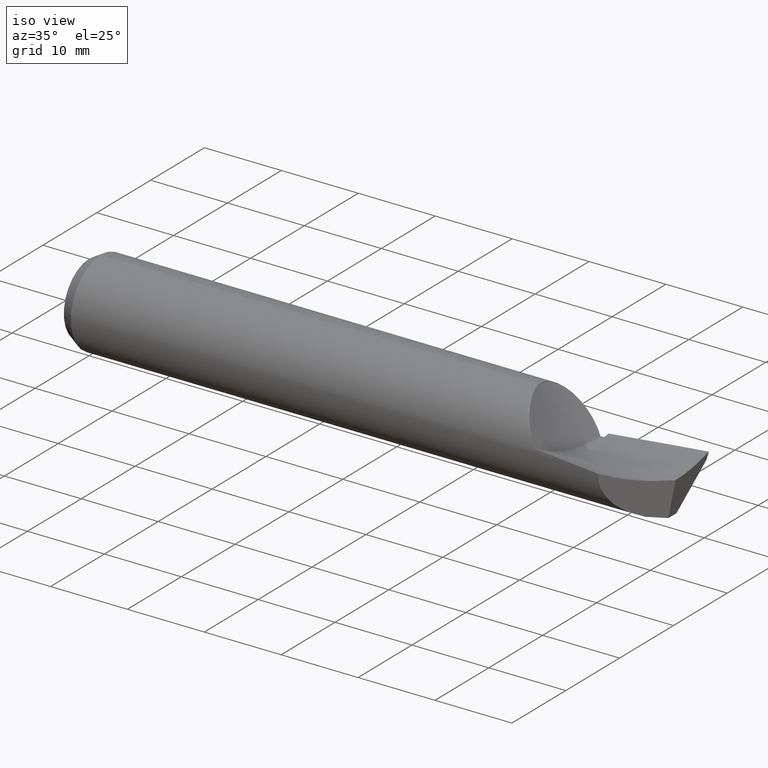
[diagram: clean part render]
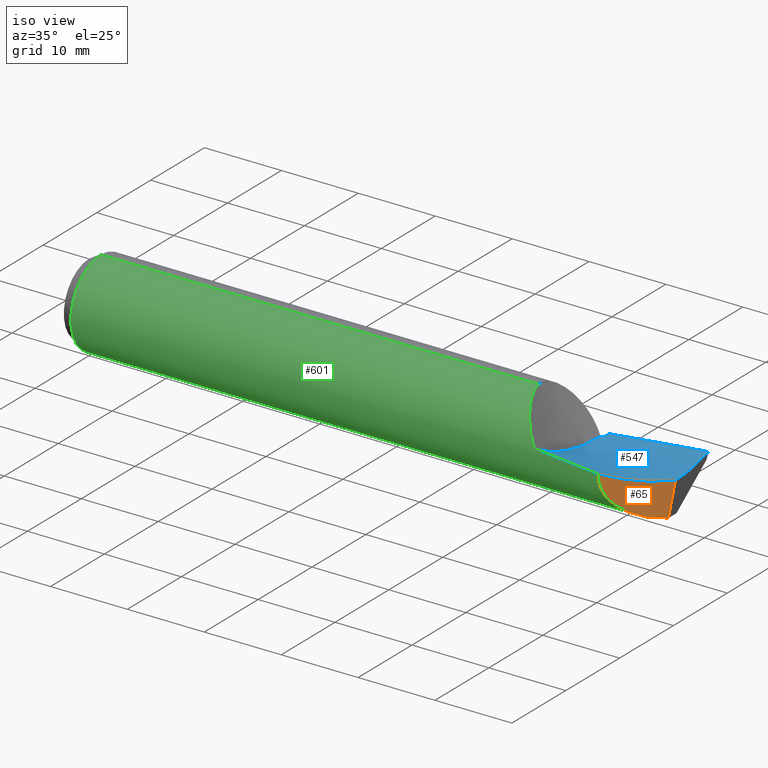
[diagram: same view with three faces highlighted in distinct colors, each labeled with its STEP entity id]
A machine part, iso view with three faces highlighted in distinct colors.
Their STEP definitions:

[orange] entity #65 — the highlighted planar face has unit normal (-0.7071, 0.7071, 0).
#14 = CARTESIAN_POINT ( 'NONE',  ( 2.952458880642425676, -0.02590525459746200604, -0.04690927801593595264 ) ) ;
#25 = CARTESIAN_POINT ( 'NONE',  ( 2.759944547215722022, -0.2184195880241632803, 0.01003524127037984555 ) ) ;
#46 = VERTEX_POINT ( 'NONE', #276 ) ;
#65 = ADVANCED_FACE ( 'NONE', ( #384 ), #387, .F. ) ;
#67 = AXIS2_PLACEMENT_3D ( 'NONE', #154, #102, #548 ) ;
#77 = ORIENTED_EDGE ( 'NONE', *, *, #672, .T. ) ;
#102 = DIRECTION ( 'NONE',  ( -0.7071067811865457964, 0.7071067811865492381, 0.000000000000000000 ) ) ;
#129 = EDGE_CURVE ( 'NONE', #46, #482, #393, .T. ) ;
#154 = CARTESIAN_POINT ( 'NONE',  ( 2.745857864376267887, -0.2325062708636176367, -0.2500000000000000555 ) ) ;
#157 = EDGE_CURVE ( 'NONE', #185, #482, #371, .T. ) ;
#185 = VERTEX_POINT ( 'NONE', #435 ) ;
#230 = CARTESIAN_POINT ( 'NONE',  ( 2.992409909881779573, 0.01404577464189131833, -0.04600755233719699966 ) ) ;
#231 = ORIENTED_EDGE ( 'NONE', *, *, #157, .F. ) ;
#236 = CARTESIAN_POINT ( 'NONE',  ( 2.913117357248658390, -0.06524677799122817479, -0.04263809646310495055 ) ) ;
#253 = VECTOR ( 'NONE', #540, 39.37007874015748854 ) ;
#263 = CARTESIAN_POINT ( 'NONE',  ( 2.759944547215722022, -0.2184195880241632803, 0.01003524127037984555 ) ) ;
#276 = CARTESIAN_POINT ( 'NONE',  ( 2.992409909881779573, 0.01404577464189131833, -0.04600755233719699966 ) ) ;
#360 = ORIENTED_EDGE ( 'NONE', *, *, #129, .T. ) ;
#364 = EDGE_LOOP ( 'NONE', ( #231, #77, #360 ) ) ;
#371 =( BOUNDED_CURVE ( )  B_SPLINE_CURVE ( 3, ( #581, #376, #576, #25 ),
 .UNSPECIFIED., .F., .T. ) 
 B_SPLINE_CURVE_WITH_KNOTS ( ( 4, 4 ),
 ( 4.745893012356792617, 6.329097805607812433 ),
 .UNSPECIFIED. ) 
 CURVE ( )  GEOMETRIC_REPRESENTATION_ITEM ( )  RATIONAL_B_SPLINE_CURVE ( ( 1.000000000000000000, 0.8018040965532753361, 0.8018040965532753361, 1.000000000000000000 ) ) 
 REPRESENTATION_ITEM ( '' )  );
#376 = CARTESIAN_POINT ( 'NONE',  ( 2.841766508389281576, -0.1365976268506046698, -0.2141944924827753893 ) ) ;
#384 = FACE_OUTER_BOUND ( 'NONE', #364, .T. ) ;
#387 = PLANE ( 'NONE',  #67 ) ;
#393 = B_SPLINE_CURVE_WITH_KNOTS ( 'NONE', 3,
 ( #230, #14, #236, #410, #414, #263 ),
 .UNSPECIFIED., .F., .F.,
 ( 4, 2, 4 ),
 ( 0.0002679580712601496348, 0.004503356390161120451, 0.008738754709062091647 ),
 .UNSPECIFIED. ) ;
#394 = CARTESIAN_POINT ( 'NONE',  ( 2.759944547215722022, -0.2184195880241632803, 0.01003524127037984555 ) ) ;
#410 = CARTESIAN_POINT ( 'NONE',  ( 2.835613050715348749, -0.1427510845245388571, -0.02409170463590122255 ) ) ;
#414 = CARTESIAN_POINT ( 'NONE',  ( 2.797449222074813946, -0.1809149131650716336, -0.009825367581797713953 ) ) ;
#435 = CARTESIAN_POINT ( 'NONE',  ( 2.971039849105131747, -0.007324286134754693679, -0.2185272919628489519 ) ) ;
#482 = VERTEX_POINT ( 'NONE', #394 ) ;
#535 = CARTESIAN_POINT ( 'NONE',  ( 2.960552829017626397, -0.01781130622226041391, -0.3031886316655612035 ) ) ;
#540 = DIRECTION ( 'NONE',  ( 0.1220122463319276429, 0.1220122463319270323, 0.9850005195379716305 ) ) ;
#548 = DIRECTION ( 'NONE',  ( -0.7071067811865492381, -0.7071067811865457964, 0.000000000000000000 ) ) ;
#576 = CARTESIAN_POINT ( 'NONE',  ( 2.754008038543239945, -0.2243560966966458292, -0.1191743854450949269 ) ) ;
#581 = CARTESIAN_POINT ( 'NONE',  ( 2.971039849105131747, -0.007324286134754693679, -0.2185272919628489519 ) ) ;
#651 = LINE ( 'NONE', #535, #253 ) ;
#672 = EDGE_CURVE ( 'NONE', #185, #46, #651, .T. ) ;

[blue] entity #547 — the highlighted face is a freeform B-spline surface patch.
#4 = CARTESIAN_POINT ( 'NONE',  ( 2.453529265273477922, 0.02632038727176034057, -0.05321014791944891908 ) ) ;
#7 = CARTESIAN_POINT ( 'NONE',  ( 2.926130615619848552, 0.2477060359061865613, -0.008186851868489259873 ) ) ;
#10 = CARTESIAN_POINT ( 'NONE',  ( 3.000000000000000444, 0.1068138953506696243, -0.07014347580852546560 ) ) ;
#13 = CARTESIAN_POINT ( 'NONE',  ( 3.000000000000000444, -0.1068138953506696520, -0.07014347580852543784 ) ) ;
#14 = CARTESIAN_POINT ( 'NONE',  ( 2.952458880642425676, -0.02590525459746200604, -0.04690927801593595264 ) ) ;
#17 = CARTESIAN_POINT ( 'NONE',  ( 2.809895244831540850, 0.2472116736001756243, -0.01975824981623042556 ) ) ;
#46 = VERTEX_POINT ( 'NONE', #276 ) ;
#72 = CARTESIAN_POINT ( 'NONE',  ( 2.464212849416284268, 0.1377136875928078319, -0.06237143978746857720 ) ) ;
#74 = CARTESIAN_POINT ( 'NONE',  ( 2.675925925925927373, -0.1160484591303231200, -0.05608115970857106142 ) ) ;
#80 = CARTESIAN_POINT ( 'NONE',  ( 2.992943527074801047, 0.05368886949584446289, -0.04447926573626161117 ) ) ;
#97 = CARTESIAN_POINT ( 'NONE',  ( 2.489999999999999769, 0.2114691027157989678, -0.05557554405431827660 ) ) ;
#105 = EDGE_CURVE ( 'NONE', #404, #729, #328, .T. ) ;
#108 = CARTESIAN_POINT ( 'NONE',  ( 2.428289023255804313, -0.2151305318689206991, 0.03907271116515032006 ) ) ;
#123 = CARTESIAN_POINT ( 'NONE',  ( 2.596629930743082237, 0.2448327961100067174, -0.04093195773288563905 ) ) ;
#124 = EDGE_CURVE ( 'NONE', #524, #172, #288, .T. ) ;
#128 = CARTESIAN_POINT ( 'NONE',  ( 2.467775382269693285, 0.1747646242851797760, -0.06124491988081878086 ) ) ;
#129 = EDGE_CURVE ( 'NONE', #46, #482, #393, .T. ) ;
#130 = VERTEX_POINT ( 'NONE', #645 ) ;
#137 = CARTESIAN_POINT ( 'NONE',  ( 1.703703703703706607, -0.1275752847551152036, -0.007339084284587429202 ) ) ;
#149 = CARTESIAN_POINT ( 'NONE',  ( 2.992624683810753083, 0.03385053414722247189, -0.04566598811201510316 ) ) ;
#158 = CARTESIAN_POINT ( 'NONE',  ( 2.759944547215722022, -0.2184195880241632803, 0.01003524127037984555 ) ) ;
#170 = CARTESIAN_POINT ( 'NONE',  ( 2.432181049313780097, -0.1841263147728423033, 0.01977626706365440482 ) ) ;
#172 = VERTEX_POINT ( 'NONE', #636 ) ;
#176 = CARTESIAN_POINT ( 'NONE',  ( 1.703703703703706607, 0.05743180894658971719, -0.1141529796352570847 ) ) ;
#187 = CARTESIAN_POINT ( 'NONE',  ( 2.027777777777780344, 0.2876624987053781890, -0.09582829018325357551 ) ) ;
#188 = CARTESIAN_POINT ( 'NONE',  ( 2.994331206119607902, 0.1133106296732912799, -0.03741539065945204828 ) ) ;
#191 = B_SPLINE_CURVE_WITH_KNOTS ( 'NONE', 3,
 ( #358, #322, #305, #188, #327, #80, #149, #731 ),
 .UNSPECIFIED., .F., .F.,
 ( 4, 2, 2, 4 ),
 ( 7.173462370684666684E-18, 0.003035248955598827438, 0.004552873433398237253, 0.006070497911197647069 ),
 .UNSPECIFIED. ) ;
#198 = EDGE_CURVE ( 'NONE', #404, #46, #191, .T. ) ;
#203 = EDGE_CURVE ( 'NONE', #130, #524, #701, .T. ) ;
#230 = CARTESIAN_POINT ( 'NONE',  ( 2.992409909881779573, 0.01404577464189131833, -0.04600755233719699966 ) ) ;
#232 = CARTESIAN_POINT ( 'NONE',  ( 2.675925925925927373, -0.2970371766865925189, 0.06084151565276457729 ) ) ;
#235 = CARTESIAN_POINT ( 'NONE',  ( 1.703703703703706829, 0.2703604744503558810, -0.1314219218935561984 ) ) ;
#236 = CARTESIAN_POINT ( 'NONE',  ( 2.913117357248658390, -0.06524677799122817479, -0.04263809646310495055 ) ) ;
#246 = CARTESIAN_POINT ( 'NONE',  ( 2.027777777777780344, -0.1266090759790448605, -0.02413468915302155807 ) ) ;
#263 = CARTESIAN_POINT ( 'NONE',  ( 2.759944547215722022, -0.2184195880241632803, 0.01003524127037984555 ) ) ;
#276 = CARTESIAN_POINT ( 'NONE',  ( 2.992409909881779573, 0.01404577464189131833, -0.04600755233719699966 ) ) ;
#287 = ORIENTED_EDGE ( 'NONE', *, *, #105, .T. ) ;
#288 = B_SPLINE_CURVE_WITH_KNOTS ( 'NONE', 3,
 ( #628, #128, #72, #557, #4, #454, #622, #679, #170, #289 ),
 .UNSPECIFIED., .F., .F.,
 ( 4, 2, 2, 2, 4 ),
 ( 0.000000000000000000, 0.2500000000000001665, 0.5000000000000002220, 0.7500000000000001110, 1.000000000000000000 ),
 .UNSPECIFIED. ) ;
#289 = CARTESIAN_POINT ( 'NONE',  ( 2.428289023255804313, -0.2151305318689206991, 0.03907271116515032006 ) ) ;
#295 = EDGE_CURVE ( 'NONE', #561, #130, #413, .T. ) ;
#300 = CARTESIAN_POINT ( 'NONE',  ( 3.000000000000000444, -0.2998500000000000054, 0.02136551425118393688 ) ) ;
#304 = CARTESIAN_POINT ( 'NONE',  ( 1.703703703703706829, -0.2489949601991719441, 0.1684280781064437238 ) ) ;
#305 = CARTESIAN_POINT ( 'NONE',  ( 2.996235550854351004, 0.1720403349151023165, -0.02608037137611564360 ) ) ;
#322 = CARTESIAN_POINT ( 'NONE',  ( 2.997909695912627903, 0.2103325509907039703, -0.01516757485499540224 ) ) ;
#327 = CARTESIAN_POINT ( 'NONE',  ( 2.993796581184938521, 0.09343502413978028998, -0.04035679793326746312 ) ) ;
#328 = B_SPLINE_CURVE_WITH_KNOTS ( 'NONE', 3,
 ( #617, #523, #633, #7, #462, #399, #17 ),
 .UNSPECIFIED., .F., .F.,
 ( 4, 3, 4 ),
 ( 6.776263578034401960E-21, 0.001885633772096463210, 0.004852637163710026361 ),
 .UNSPECIFIED. ) ;
#331 = B_SPLINE_CURVE_WITH_KNOTS ( 'NONE', 3,
 ( #461, #575, #123, #357 ),
 .UNSPECIFIED., .F., .F.,
 ( 4, 4 ),
 ( 9.477631622391582071E-13, 0.008165861144580687653 ),
 .UNSPECIFIED. ) ;
#335 = CARTESIAN_POINT ( 'NONE',  ( 2.593749806622903442, -0.2177474673098440949, 0.02466412019502529571 ) ) ;
#357 = CARTESIAN_POINT ( 'NONE',  ( 2.489999999999967351, 0.2426219749193215536, -0.05138085314958797112 ) ) ;
#358 = CARTESIAN_POINT ( 'NONE',  ( 3.000000000000000444, 0.2477392110322483021, -0.0008026259127264761661 ) ) ;
#361 = CARTESIAN_POINT ( 'NONE',  ( 2.489999999999967351, 0.2426219749193215536, -0.05138085314958797112 ) ) ;
#365 = CARTESIAN_POINT ( 'NONE',  ( 2.351851851851853414, 0.08501983269681530342, -0.09539886522747811903 ) ) ;
#378 = ORIENTED_EDGE ( 'NONE', *, *, #443, .T. ) ;
#392 =( BOUNDED_SURFACE ( )  B_SPLINE_SURFACE ( 3, 2, ( 
 ( #300, #232, #475, #525, #304 ),
 ( #13, #74, #521, #246, #137 ),
 ( #10, #708, #365, #472, #176 ),
 ( #583, #567, #635, #187, #235 ) ),
 .UNSPECIFIED., .F., .F., .T. ) 
 B_SPLINE_SURFACE_WITH_KNOTS ( ( 4, 4 ),
 ( 3, 2, 3 ),
 ( 0.000000000000000000, 1.000000000000000000 ),
 ( 0.000000000000000000, 0.5000000000000000000, 1.000000000000000000 ),
 .UNSPECIFIED. ) 
 GEOMETRIC_REPRESENTATION_ITEM ( )  RATIONAL_B_SPLINE_SURFACE ( (
 ( 1.000000000000000000, 0.9914448613738103822, 1.000000000000000000, 0.9914448613738103822, 1.000000000000000000),
 ( 0.9357396776127722138, 0.9277342949527689342, 0.9357396776127722138, 0.9277342949527689342, 0.9357396776127722138),
 ( 0.9357396776127722138, 0.9277342949527689342, 0.9357396776127722138, 0.9277342949527689342, 0.9357396776127722138),
 ( 1.000000000000000000, 0.9914448613738103822, 1.000000000000000000, 0.9914448613738103822, 1.000000000000000000) ) ) 
 REPRESENTATION_ITEM ( '' )  SURFACE ( )  );
#393 = B_SPLINE_CURVE_WITH_KNOTS ( 'NONE', 3,
 ( #230, #14, #236, #410, #414, #263 ),
 .UNSPECIFIED., .F., .F.,
 ( 4, 2, 4 ),
 ( 0.0002679580712601496348, 0.004503356390161120451, 0.008738754709062091647 ),
 .UNSPECIFIED. ) ;
#394 = CARTESIAN_POINT ( 'NONE',  ( 2.759944547215722022, -0.2184195880241632803, 0.01003524127037984555 ) ) ;
#399 = CARTESIAN_POINT ( 'NONE',  ( 2.848640842118977279, 0.2474659832089975697, -0.01591075100367276771 ) ) ;
#404 = VERTEX_POINT ( 'NONE', #444 ) ;
#410 = CARTESIAN_POINT ( 'NONE',  ( 2.835613050715348749, -0.1427510845245388571, -0.02409170463590122255 ) ) ;
#413 =( BOUNDED_CURVE ( )  B_SPLINE_CURVE ( 3, ( #740, #515, #510, #457 ),
 .UNSPECIFIED., .F., .F. ) 
 B_SPLINE_CURVE_WITH_KNOTS ( ( 4, 4 ),
 ( 0.0002617011591299813617, 0.001057620901885632150 ),
 .UNSPECIFIED. ) 
 CURVE ( )  GEOMETRIC_REPRESENTATION_ITEM ( )  RATIONAL_B_SPLINE_CURVE ( ( 0.9808774511521618500, 0.9781997135498966545, 0.9756910240518260613, 0.9733513826579500705 ) ) 
 REPRESENTATION_ITEM ( '' )  );
#414 = CARTESIAN_POINT ( 'NONE',  ( 2.797449222074813946, -0.1809149131650716336, -0.009825367581797713953 ) ) ;
#443 = EDGE_CURVE ( 'NONE', #172, #482, #495, .T. ) ;
#444 = CARTESIAN_POINT ( 'NONE',  ( 3.000000000000000444, 0.2477392110322483021, -0.0008026259127264761661 ) ) ;
#454 = CARTESIAN_POINT ( 'NONE',  ( 2.446410319841564096, -0.04662749994845854368, -0.03674176704074298000 ) ) ;
#457 = CARTESIAN_POINT ( 'NONE',  ( 2.489999999999999769, 0.2114691027157989678, -0.05557554405431827660 ) ) ;
#460 = EDGE_LOOP ( 'NONE', ( #509, #287, #570, #467, #637, #528, #378, #626 ) ) ;
#461 = CARTESIAN_POINT ( 'NONE',  ( 2.809895244831540850, 0.2472116736001756243, -0.01975824981623042556 ) ) ;
#462 = CARTESIAN_POINT ( 'NONE',  ( 2.887386176554748829, 0.2476311015767037604, -0.01205364072063274533 ) ) ;
#467 = ORIENTED_EDGE ( 'NONE', *, *, #295, .T. ) ;
#468 = FACE_OUTER_BOUND ( 'NONE', #460, .T. ) ;
#472 = CARTESIAN_POINT ( 'NONE',  ( 2.027777777777780344, 0.07246033382261446443, -0.1065919385464763891 ) ) ;
#475 = CARTESIAN_POINT ( 'NONE',  ( 2.351851851851853414, -0.2841030570161613977, 0.09824439268115654766 ) ) ;
#482 = VERTEX_POINT ( 'NONE', #394 ) ;
#495 =( BOUNDED_CURVE ( )  B_SPLINE_CURVE ( 2, ( #108, #335, #158 ),
 .UNSPECIFIED., .F., .F. ) 
 B_SPLINE_CURVE_WITH_KNOTS ( ( 3, 3 ),
 ( 0.5593075405032249536, 0.8145556036202796779 ),
 .UNSPECIFIED. ) 
 CURVE ( )  GEOMETRIC_REPRESENTATION_ITEM ( )  RATIONAL_B_SPLINE_CURVE ( ( 0.9744143277570936901, 0.9711624498025578367, 0.9722633163224428943 ) ) 
 REPRESENTATION_ITEM ( '' )  );
#509 = ORIENTED_EDGE ( 'NONE', *, *, #198, .F. ) ;
#510 = CARTESIAN_POINT ( 'NONE',  ( 2.490000000000000657, 0.2218972837053052594, -0.05440913279074890974 ) ) ;
#515 = CARTESIAN_POINT ( 'NONE',  ( 2.490000000000000657, 0.2322832564455103443, -0.05301006633052884887 ) ) ;
#521 = CARTESIAN_POINT ( 'NONE',  ( 2.351851851851853414, -0.1213287675546839833, -0.04010792443079629760 ) ) ;
#523 = CARTESIAN_POINT ( 'NONE',  ( 2.975377276411506955, 0.2477648454692879254, -0.003267969609746442915 ) ) ;
#524 = VERTEX_POINT ( 'NONE', #579 ) ;
#525 = CARTESIAN_POINT ( 'NONE',  ( 2.027777777777780344, -0.2711689373457302765, 0.1356472697095485735 ) ) ;
#528 = ORIENTED_EDGE ( 'NONE', *, *, #124, .T. ) ;
#547 = ADVANCED_FACE ( 'NONE', ( #468 ), #392, .T. ) ;
#557 = CARTESIAN_POINT ( 'NONE',  ( 2.457089790918025596, 0.06348854570549891663, -0.05835484118810310705 ) ) ;
#561 = VERTEX_POINT ( 'NONE', #361 ) ;
#567 = CARTESIAN_POINT ( 'NONE',  ( 2.675925925925927373, 0.3026628233134074919, -0.01811048715039669660 ) ) ;
#570 = ORIENTED_EDGE ( 'NONE', *, *, #573, .T. ) ;
#573 = EDGE_CURVE ( 'NONE', #729, #561, #331, .T. ) ;
#575 = CARTESIAN_POINT ( 'NONE',  ( 2.703263665431202778, 0.2463618655492745002, -0.03039089554664004336 ) ) ;
#579 = CARTESIAN_POINT ( 'NONE',  ( 2.471346566983472215, 0.2110442653468279639, -0.05716765312847496561 ) ) ;
#583 = CARTESIAN_POINT ( 'NONE',  ( 3.000000000000000444, 0.2998499999999999499, 0.02136551425118393688 ) ) ;
#617 = CARTESIAN_POINT ( 'NONE',  ( 3.000000000000000444, 0.2477392110322483021, -0.0008026259127264761661 ) ) ;
#622 = CARTESIAN_POINT ( 'NONE',  ( 2.442851900054497705, -0.08240101752907307009, -0.02541948207811111152 ) ) ;
#626 = ORIENTED_EDGE ( 'NONE', *, *, #129, .F. ) ;
#628 = CARTESIAN_POINT ( 'NONE',  ( 2.471346566983472215, 0.2110442653468279639, -0.05716765312847496561 ) ) ;
#633 = CARTESIAN_POINT ( 'NONE',  ( 2.950754092320284627, 0.2477536593525599129, -0.005729369259274572079 ) ) ;
#635 = CARTESIAN_POINT ( 'NONE',  ( 2.351851851851853414, 0.2951626610093928127, -0.05696938866682513258 ) ) ;
#636 = CARTESIAN_POINT ( 'NONE',  ( 2.428289023255804313, -0.2151305318689206991, 0.03907271116515032006 ) ) ;
#637 = ORIENTED_EDGE ( 'NONE', *, *, #203, .T. ) ;
#639 = CARTESIAN_POINT ( 'NONE',  ( 2.480670511054988481, 0.2112596837126563543, -0.05637239902461498031 ) ) ;
#645 = CARTESIAN_POINT ( 'NONE',  ( 2.489999999999999769, 0.2114691027157989678, -0.05557554405431827660 ) ) ;
#653 = CARTESIAN_POINT ( 'NONE',  ( 2.809895244831540850, 0.2472116736001756243, -0.01975824981623042556 ) ) ;
#664 = CARTESIAN_POINT ( 'NONE',  ( 2.471346566983472215, 0.2110442653468279639, -0.05716765312847496561 ) ) ;
#679 = CARTESIAN_POINT ( 'NONE',  ( 2.435737264790456713, -0.1511528165519579192, 0.002841545197440521840 ) ) ;
#701 =( BOUNDED_CURVE ( )  B_SPLINE_CURVE ( 2, ( #97, #639, #664 ),
 .UNSPECIFIED., .F., .T. ) 
 B_SPLINE_CURVE_WITH_KNOTS ( ( 3, 3 ),
 ( 0.3930158259847700841, 0.4074109194752288943 ),
 .UNSPECIFIED. ) 
 CURVE ( )  GEOMETRIC_REPRESENTATION_ITEM ( )  RATIONAL_B_SPLINE_CURVE ( ( 0.9733513826577548933, 0.9734889251378003872, 0.9736403117979953725 ) ) 
 REPRESENTATION_ITEM ( '' )  );
#708 = CARTESIAN_POINT ( 'NONE',  ( 2.675925925925927373, 0.09757933157101621180, -0.08420579190847984896 ) ) ;
#729 = VERTEX_POINT ( 'NONE', #653 ) ;
#731 = CARTESIAN_POINT ( 'NONE',  ( 2.992409909881779573, 0.01404577464189131833, -0.04600755233719699966 ) ) ;
#740 = CARTESIAN_POINT ( 'NONE',  ( 2.489999999999967351, 0.2426219749193215536, -0.05138085314958797112 ) ) ;

[green] entity #601 — the highlighted cylindrical surface (partial cylindrical patch) has radius 5.5537 mm, axis along (-1, -0, -0).
#9 = VERTEX_POINT ( 'NONE', #710 ) ;
#24 = EDGE_CURVE ( 'NONE', #172, #545, #693, .T. ) ;
#25 = CARTESIAN_POINT ( 'NONE',  ( 2.759944547215722022, -0.2184195880241632803, 0.01003524127037984555 ) ) ;
#29 = CARTESIAN_POINT ( 'NONE',  ( 2.333018530376162136, -0.09912489433539911632, 0.1953142997923079105 ) ) ;
#32 = CARTESIAN_POINT ( 'NONE',  ( 2.404165058258995735, -0.2022209992731614780, 0.08673448802873333363 ) ) ;
#36 = CARTESIAN_POINT ( 'NONE',  ( 2.323214188873262032, -0.07528118465658968639, 0.2052819717783619657 ) ) ;
#43 = EDGE_CURVE ( 'NONE', #9, #185, #615, .T. ) ;
#61 = DIRECTION ( 'NONE',  ( 1.000000000000000000, -0.000000000000000000, -0.000000000000000000 ) ) ;
#86 = EDGE_CURVE ( 'NONE', #280, #290, #319, .T. ) ;
#87 = EDGE_CURVE ( 'NONE', #545, #702, #222, .T. ) ;
#89 = CARTESIAN_POINT ( 'NONE',  ( 2.355320374578511622, -0.1416402864811723283, 0.1665775413964809271 ) ) ;
#91 = CARTESIAN_POINT ( 'NONE',  ( 2.352574804815551701, -0.1369811847766351232, 0.1704269595549112171 ) ) ;
#93 = CARTESIAN_POINT ( 'NONE',  ( 2.343951596291697470, -0.1213797972024620586, 0.1819929034652300326 ) ) ;
#106 = DIRECTION ( 'NONE',  ( -1.000000000000000000, -0.000000000000000000, -0.000000000000000000 ) ) ;
#108 = CARTESIAN_POINT ( 'NONE',  ( 2.428289023255804313, -0.2151305318689206991, 0.03907271116515032006 ) ) ;
#109 = CARTESIAN_POINT ( 'NONE',  ( 2.971088699955716450, 0.000000000000000000, -0.2186499999999999277 ) ) ;
#120 = DIRECTION ( 'NONE',  ( 0.000000000000000000, 0.000000000000000000, 1.000000000000000000 ) ) ;
#126 = ORIENTED_EDGE ( 'NONE', *, *, #443, .F. ) ;
#134 = FACE_OUTER_BOUND ( 'NONE', #681, .T. ) ;
#136 = CARTESIAN_POINT ( 'NONE',  ( 2.301726246469366188, -1.097537071093359530E-06, 0.2186592195482873757 ) ) ;
#139 = CARTESIAN_POINT ( 'NONE',  ( 2.361462074103669373, -0.1518093568957322725, 0.1578105731485001939 ) ) ;
#147 = CARTESIAN_POINT ( 'NONE',  ( 2.388684362219429147, -0.1868110008452404935, 0.1136655096938769816 ) ) ;
#157 = EDGE_CURVE ( 'NONE', #185, #482, #371, .T. ) ;
#158 = CARTESIAN_POINT ( 'NONE',  ( 2.759944547215722022, -0.2184195880241632803, 0.01003524127037984555 ) ) ;
#164 = ORIENTED_EDGE ( 'NONE', *, *, #86, .F. ) ;
#172 = VERTEX_POINT ( 'NONE', #636 ) ;
#185 = VERTEX_POINT ( 'NONE', #435 ) ;
#189 = CARTESIAN_POINT ( 'NONE',  ( 2.306805682398024526, -0.02460528017656646999, 0.2176696562880552077 ) ) ;
#197 = CARTESIAN_POINT ( 'NONE',  ( 2.416417109839361199, -0.2107593895042231824, 0.06321933073818106208 ) ) ;
#201 = CARTESIAN_POINT ( 'NONE',  ( 2.323851703196345930, -0.07692295761513165409, 0.2046733460412995254 ) ) ;
#204 = CARTESIAN_POINT ( 'NONE',  ( 2.379225412555462160, -0.1761750767513639848, 0.1296564606167888434 ) ) ;
#222 = LINE ( 'NONE', #741, #526 ) ;
#225 = ORIENTED_EDGE ( 'NONE', *, *, #24, .T. ) ;
#242 = CARTESIAN_POINT ( 'NONE',  ( 2.301726246469366188, -1.097537071093359530E-06, 0.2186592195482873757 ) ) ;
#245 = CARTESIAN_POINT ( 'NONE',  ( 2.367185262199309026, -0.1604174294540414158, 0.1490964670851037677 ) ) ;
#252 = CARTESIAN_POINT ( 'NONE',  ( 2.323595237030361194, -0.07626520320020195587, 0.2049193257915879196 ) ) ;
#258 = CARTESIAN_POINT ( 'NONE',  ( 2.353176744031411971, -0.1380131013251680028, 0.1695889247472538719 ) ) ;
#272 = ORIENTED_EDGE ( 'NONE', *, *, #301, .T. ) ;
#278 = DIRECTION ( 'NONE',  ( -1.000000000000000000, -0.000000000000000000, -0.000000000000000000 ) ) ;
#280 = VERTEX_POINT ( 'NONE', #533 ) ;
#282 = ORIENTED_EDGE ( 'NONE', *, *, #314, .F. ) ;
#290 = VERTEX_POINT ( 'NONE', #507 ) ;
#301 = EDGE_CURVE ( 'NONE', #280, #9, #341, .T. ) ;
#306 = CARTESIAN_POINT ( 'NONE',  ( 2.348460418300621910, -0.1297214670295094296, 0.1760449541647408356 ) ) ;
#310 = CARTESIAN_POINT ( 'NONE',  ( 2.341101494872643407, -0.1157947440727478960, 0.1855823246303852647 ) ) ;
#314 = EDGE_CURVE ( 'NONE', #290, #702, #536, .T. ) ;
#319 = LINE ( 'NONE', #670, #499 ) ;
#329 = CARTESIAN_POINT ( 'NONE',  ( 2.971051103806576332, -0.004883656855270843838, -0.2186090934945076891 ) ) ;
#335 = CARTESIAN_POINT ( 'NONE',  ( 2.593749806622903442, -0.2177474673098440949, 0.02466412019502529571 ) ) ;
#336 = CARTESIAN_POINT ( 'NONE',  ( 2.971039849105131747, -0.007324286134754693679, -0.2185272919628489519 ) ) ;
#341 = LINE ( 'NONE', #383, #514 ) ;
#349 = DIRECTION ( 'NONE',  ( 0.000000000000000000, 0.000000000000000000, 1.000000000000000000 ) ) ;
#369 = CARTESIAN_POINT ( 'NONE',  ( 2.317997827412833001, -0.06112191080452084035, 0.2099624141757665541 ) ) ;
#371 =( BOUNDED_CURVE ( )  B_SPLINE_CURVE ( 3, ( #581, #376, #576, #25 ),
 .UNSPECIFIED., .F., .T. ) 
 B_SPLINE_CURVE_WITH_KNOTS ( ( 4, 4 ),
 ( 4.745893012356792617, 6.329097805607812433 ),
 .UNSPECIFIED. ) 
 CURVE ( )  GEOMETRIC_REPRESENTATION_ITEM ( )  RATIONAL_B_SPLINE_CURVE ( ( 1.000000000000000000, 0.8018040965532753361, 0.8018040965532753361, 1.000000000000000000 ) ) 
 REPRESENTATION_ITEM ( '' )  );
#375 = CARTESIAN_POINT ( 'NONE',  ( 2.353579253872610355, -0.1387005322206077418, 0.1690271631899468996 ) ) ;
#376 = CARTESIAN_POINT ( 'NONE',  ( 2.841766508389281576, -0.1365976268506046698, -0.2141944924827753893 ) ) ;
#383 = CARTESIAN_POINT ( 'NONE',  ( 2.399999999999999911, 0.000000000000000000, -0.2186499999999999277 ) ) ;
#394 = CARTESIAN_POINT ( 'NONE',  ( 2.759944547215722022, -0.2184195880241632803, 0.01003524127037984555 ) ) ;
#398 = CARTESIAN_POINT ( 'NONE',  ( 0.05999999999999999778, 0.000000000000000000, 0.000000000000000000 ) ) ;
#400 = ORIENTED_EDGE ( 'NONE', *, *, #157, .T. ) ;
#409 = CARTESIAN_POINT ( 'NONE',  ( 0.000000000000000000, 0.000000000000000000, 0.000000000000000000 ) ) ;
#415 = CARTESIAN_POINT ( 'NONE',  ( 2.303857134158197706, -0.01195368764396190220, 0.2186499833073599353 ) ) ;
#419 = CARTESIAN_POINT ( 'NONE',  ( 2.390320083459166245, -0.1884932922161007829, 0.1108494801515015338 ) ) ;
#424 = CARTESIAN_POINT ( 'NONE',  ( 2.322690167765285807, -0.07391856379628218565, 0.2057767623563798443 ) ) ;
#426 = CARTESIAN_POINT ( 'NONE',  ( 2.314552961290849975, -0.05098192065812529733, 0.2127387826740963217 ) ) ;
#429 = CARTESIAN_POINT ( 'NONE',  ( 2.321872108503046039, -0.07177740625180752121, 0.2065433747930592312 ) ) ;
#432 = DIRECTION ( 'NONE',  ( -1.000000000000000000, -0.000000000000000000, -0.000000000000000000 ) ) ;
#435 = CARTESIAN_POINT ( 'NONE',  ( 2.971039849105131747, -0.007324286134754693679, -0.2185272919628489519 ) ) ;
#443 = EDGE_CURVE ( 'NONE', #172, #482, #495, .T. ) ;
#463 = ORIENTED_EDGE ( 'NONE', *, *, #43, .T. ) ;
#474 = CARTESIAN_POINT ( 'NONE',  ( 2.319797351407706820, -0.06622082069837750828, 0.2084352783557120448 ) ) ;
#482 = VERTEX_POINT ( 'NONE', #394 ) ;
#495 =( BOUNDED_CURVE ( )  B_SPLINE_CURVE ( 2, ( #108, #335, #158 ),
 .UNSPECIFIED., .F., .F. ) 
 B_SPLINE_CURVE_WITH_KNOTS ( ( 3, 3 ),
 ( 0.5593075405032249536, 0.8145556036202796779 ),
 .UNSPECIFIED. ) 
 CURVE ( )  GEOMETRIC_REPRESENTATION_ITEM ( )  RATIONAL_B_SPLINE_CURVE ( ( 0.9744143277570936901, 0.9711624498025578367, 0.9722633163224428943 ) ) 
 REPRESENTATION_ITEM ( '' )  );
#499 = VECTOR ( 'NONE', #106, 39.37007874015748143 ) ;
#507 = CARTESIAN_POINT ( 'NONE',  ( 0.05999999999999999778, 2.677690226335687467E-17, -0.2186499999999999555 ) ) ;
#514 = VECTOR ( 'NONE', #61, 39.37007874015748143 ) ;
#526 = VECTOR ( 'NONE', #432, 39.37007874015748143 ) ;
#531 = CARTESIAN_POINT ( 'NONE',  ( 2.376165893786017946, -0.1723573828810189834, 0.1346836162414764559 ) ) ;
#532 = CARTESIAN_POINT ( 'NONE',  ( 0.05999999999999999778, 0.000000000000000000, 0.2186499999999999555 ) ) ;
#533 = CARTESIAN_POINT ( 'NONE',  ( 2.489999999999999769, 0.000000000000000000, -0.2186499999999999277 ) ) ;
#536 = CIRCLE ( 'NONE', #630, 0.2186499999999999555 ) ;
#539 = CARTESIAN_POINT ( 'NONE',  ( 2.353799381708173932, -0.1390748737465820617, 0.1687191142472268257 ) ) ;
#541 = CARTESIAN_POINT ( 'NONE',  ( 2.971067388946768695, -0.002441999748250356459, -0.2186499999999999555 ) ) ;
#545 = VERTEX_POINT ( 'NONE', #242 ) ;
#576 = CARTESIAN_POINT ( 'NONE',  ( 2.754008038543239945, -0.2243560966966458292, -0.1191743854450949269 ) ) ;
#581 = CARTESIAN_POINT ( 'NONE',  ( 2.971039849105131747, -0.007324286134754693679, -0.2185272919628489519 ) ) ;
#582 = CARTESIAN_POINT ( 'NONE',  ( 2.428289023255804313, -0.2151305318689206991, 0.03907271116515032006 ) ) ;
#586 = CARTESIAN_POINT ( 'NONE',  ( 2.383913653070440120, -0.1816157460054782236, 0.1217936843185191270 ) ) ;
#594 = CARTESIAN_POINT ( 'NONE',  ( 2.350387775362744680, -0.1331895126695835652, 0.1734492682114129880 ) ) ;
#596 = CARTESIAN_POINT ( 'NONE',  ( 2.312461959699878555, -0.04429957942379926517, 0.2142190208831988296 ) ) ;
#601 = ADVANCED_FACE ( 'NONE', ( #134 ), #688, .T. ) ;
#615 =( BOUNDED_CURVE ( )  B_SPLINE_CURVE ( 3, ( #109, #541, #329, #336 ),
 .UNSPECIFIED., .F., .T. ) 
 B_SPLINE_CURVE_WITH_KNOTS ( ( 4, 4 ),
 ( 6.212232684215155842, 6.245736716187258786 ),
 .UNSPECIFIED. ) 
 CURVE ( )  GEOMETRIC_REPRESENTATION_ITEM ( )  RATIONAL_B_SPLINE_CURVE ( ( 1.000000000000000000, 0.9999064588410366827, 0.9999064588410366827, 1.000000000000000000 ) ) 
 REPRESENTATION_ITEM ( '' )  );
#627 = DIRECTION ( 'NONE',  ( -1.000000000000000000, -0.000000000000000000, -0.000000000000000000 ) ) ;
#630 = AXIS2_PLACEMENT_3D ( 'NONE', #398, #278, #120 ) ;
#636 = CARTESIAN_POINT ( 'NONE',  ( 2.428289023255804313, -0.2151305318689206991, 0.03907271116515032006 ) ) ;
#644 = AXIS2_PLACEMENT_3D ( 'NONE', #409, #627, #349 ) ;
#670 = CARTESIAN_POINT ( 'NONE',  ( 0.000000000000000000, 2.677690226335687467E-17, -0.2186499999999999555 ) ) ;
#677 = ORIENTED_EDGE ( 'NONE', *, *, #87, .T. ) ;
#681 = EDGE_LOOP ( 'NONE', ( #164, #272, #463, #400, #126, #225, #677, #282 ) ) ;
#688 = CYLINDRICAL_SURFACE ( 'NONE', #644, 0.2186499999999999555 ) ;
#693 = B_SPLINE_CURVE_WITH_KNOTS ( 'NONE', 3,
 ( #582, #197, #32, #419, #147, #720, #586, #204, #531, #245, #139, #89, #718, #539, #375, #258, #91, #594, #306, #93, #310, #29, #706, #201, #252, #36, #714, #424, #429, #474, #369, #426, #596, #189, #415, #136 ),
 .UNSPECIFIED., .F., .F.,
 ( 4, 2, 2, 2, 2, 2, 2, 2, 1, 1, 2, 2, 2, 2, 2, 1, 1, 2, 2, 4 ),
 ( 0.000000000000000000, 0.2421414659143773240, 0.2724091491536743126, 0.3026768323929712179, 0.3632121988715651950, 0.4842829318287540930, 0.4994167734484019627, 0.5032002338533133612, 0.5069836942582246486, 0.5145506150680475566, 0.5448182983073414087, 0.6053536647859286690, 0.7264243977431024124, 0.7339913185529264306, 0.7377747789578389392, 0.7415582393627514479, 0.7566920809824019267, 0.7869597642217037725, 0.8474951307003064649, 0.9685658636575118496 ),
 .UNSPECIFIED. ) ;
#702 = VERTEX_POINT ( 'NONE', #532 ) ;
#706 = CARTESIAN_POINT ( 'NONE',  ( 2.328253007059419399, -0.08813334624504223780, 0.2004187933001360944 ) ) ;
#710 = CARTESIAN_POINT ( 'NONE',  ( 2.971088699955716450, 0.000000000000000000, -0.2186499999999999277 ) ) ;
#714 = CARTESIAN_POINT ( 'NONE',  ( 2.323018997531303587, -0.07477532232089660613, 0.2054669831661161961 ) ) ;
#718 = CARTESIAN_POINT ( 'NONE',  ( 2.354642086951861835, -0.1405036324967416650, 0.1675373154708095502 ) ) ;
#720 = CARTESIAN_POINT ( 'NONE',  ( 2.385492893635567935, -0.1833816485035686950, 0.1191191383568687978 ) ) ;
#741 = CARTESIAN_POINT ( 'NONE',  ( 0.000000000000000000, 0.000000000000000000, 0.2186499999999999555 ) ) ;